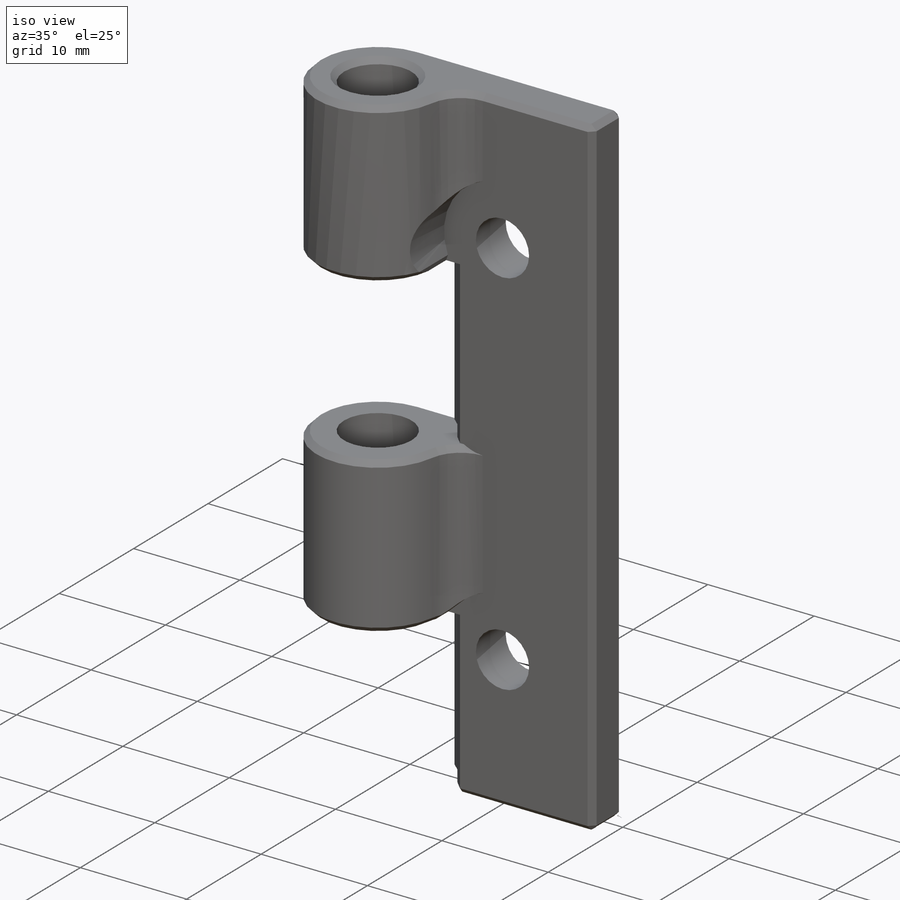
[diagram: iso view]
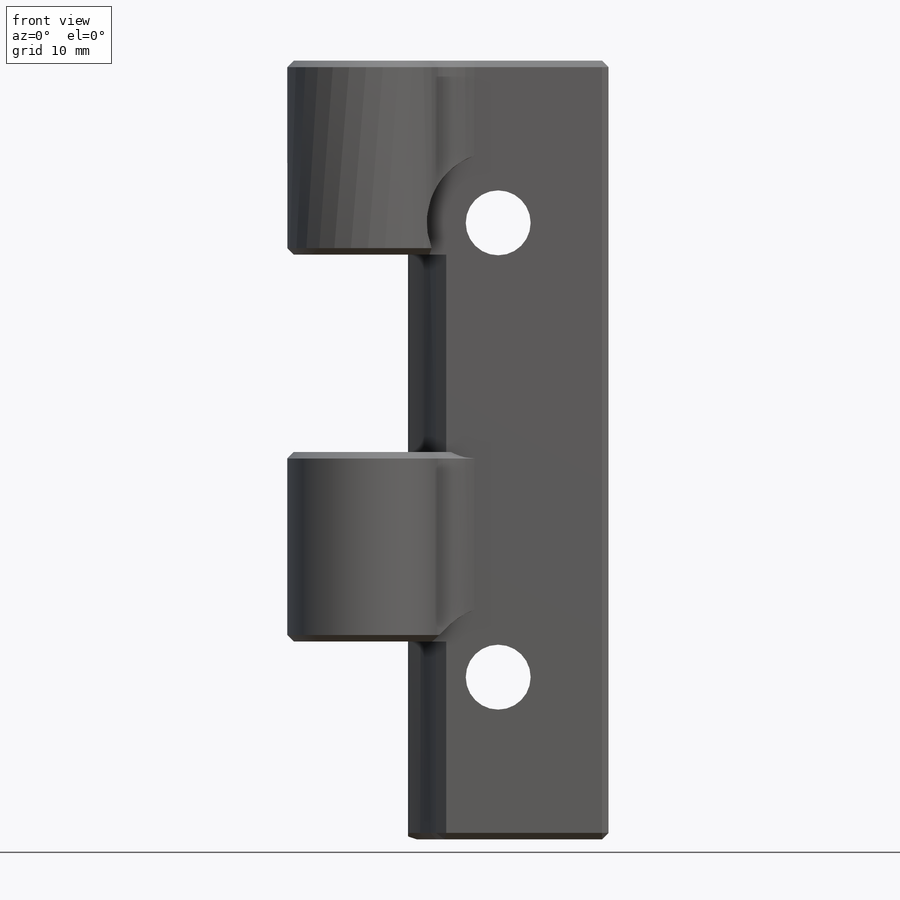
[diagram: front view]
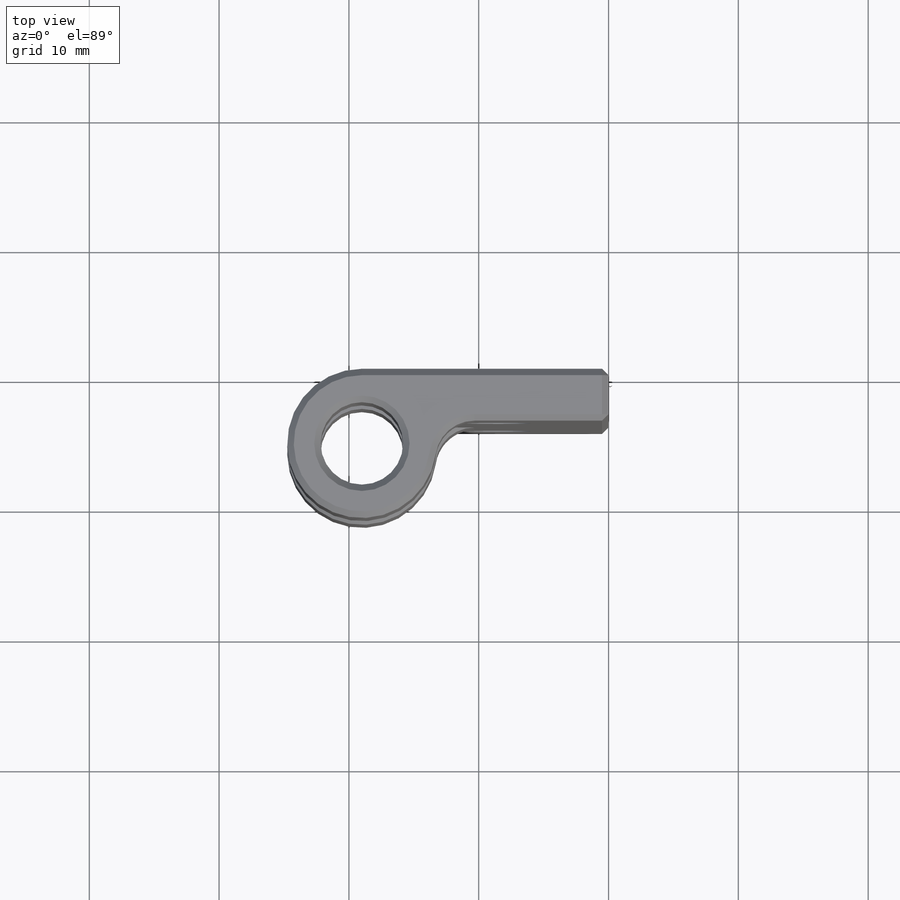
[diagram: top view]
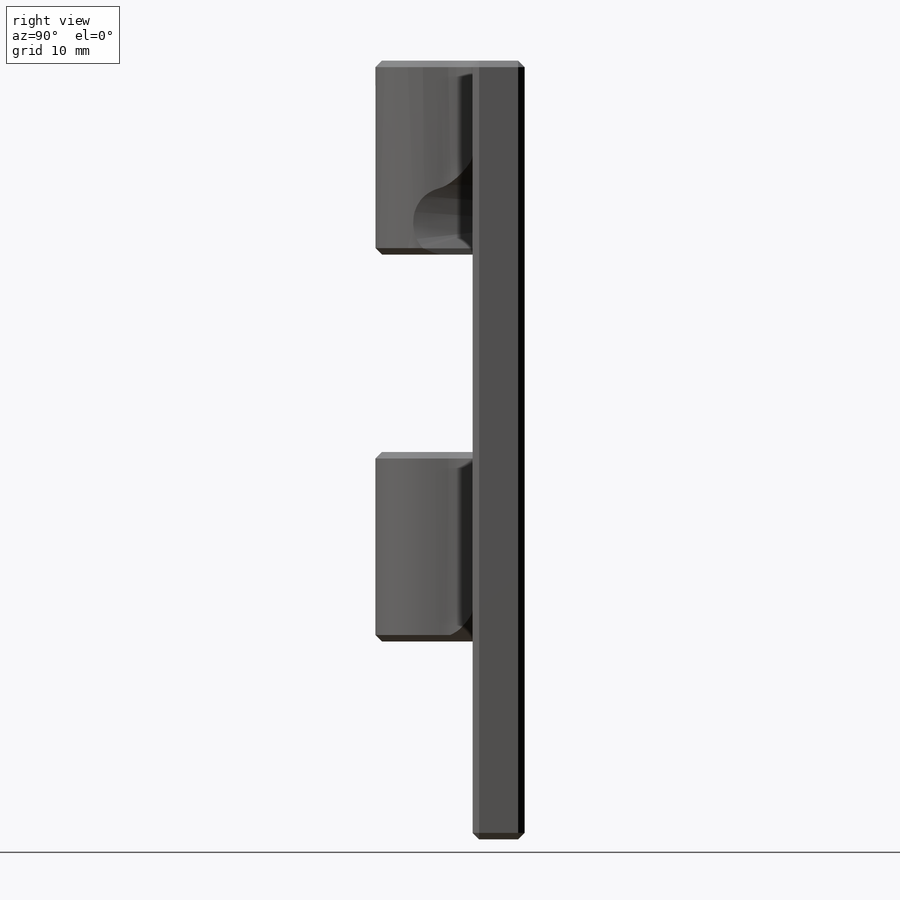
[diagram: right view]
SOLIDWORKS PART (.sldprt)
format: sldprt  version: not decoded by parser v0  size: 307,712 bytes
history: native  units: mm
features: sketch x5, cut_extrude x4, material x1, extrude x1, chamfer x1, fillet x1 (+13 scaffold rows collapsed)
feature tree (26):
  scaffold x13  (default folders/planes/origin — collapsed)
  material  "ABS"
  sketch  "Sketch1"  dims[c1.D1=6.35mm c1.D2=11.5mm c1.D4=5.1mm c1.D5=3.0mm c1.D3=4.0mm c2.D4=19.0mm]
  extrude  "Boss-Extrude1"  Depth=60mm
  sketch  "Sketch2"  dims[c1.D2=5.0mm c1.D3=5.0mm c1.D4=11.0mm c1.D5=9.5mm c2.D2=5.0mm c2.D1=10.5mm c3.D2=35.0mm]
  cut_extrude  "Cut-Extrude1"  Depth=1mm
  cut_extrude  "Cut-Extrude2"  [1 undecoded]
  sketch  "Sketch2<3>"
  sketch  "Sketch3"  dims[D1=12.5mm]
  cut_extrude  "Cut-Extrude3"  Depth=15.2mm
  cut_extrude  "Cut-Extrude4"  [1 undecoded]
  sketch  "Sketch3<2>"  dims[D19=44.75mm]
  chamfer  "Chamfer2"  Distance=0.5mm Angle=45deg
  fillet  "Fillet8"  Radius=0.4mm
decode coverage: 9 of 12 modeling features carry decoded parameters
note: 2 parameter values undecoded
note: suppression state not decoded; provenance and decode notes live in map.json
